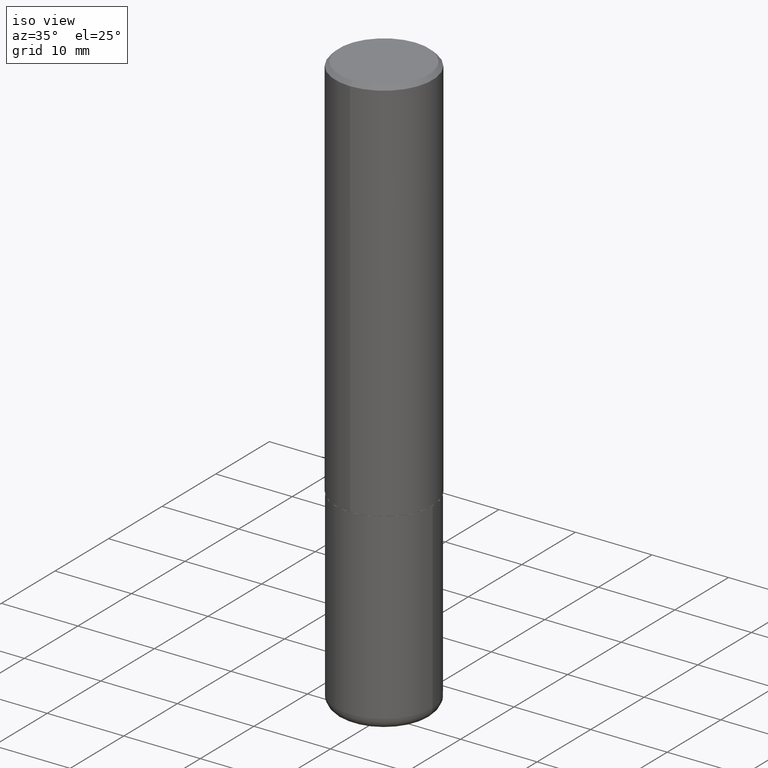
[diagram: clean part render]
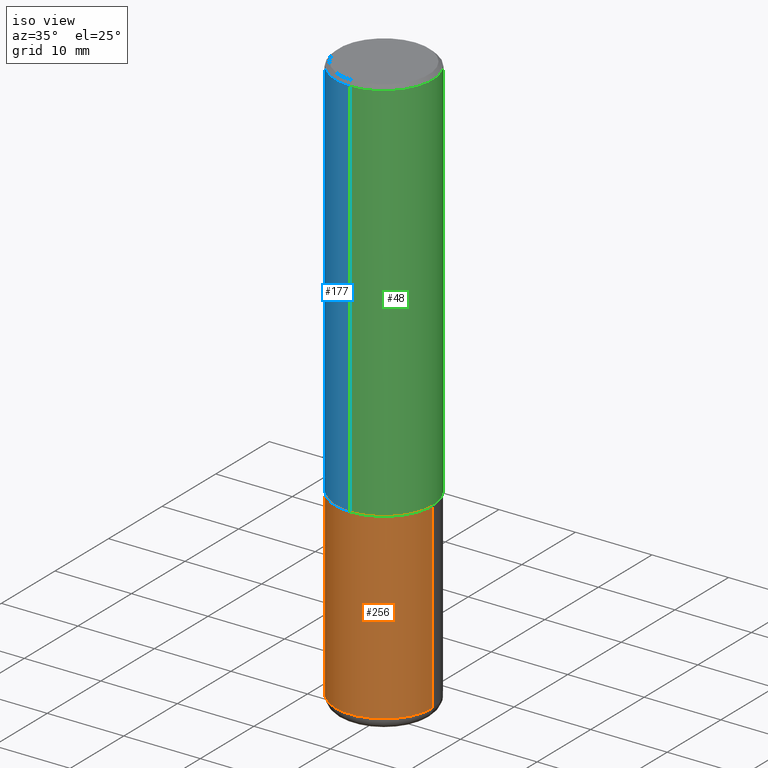
[diagram: same view with three faces highlighted in distinct colors, each labeled with its STEP entity id]
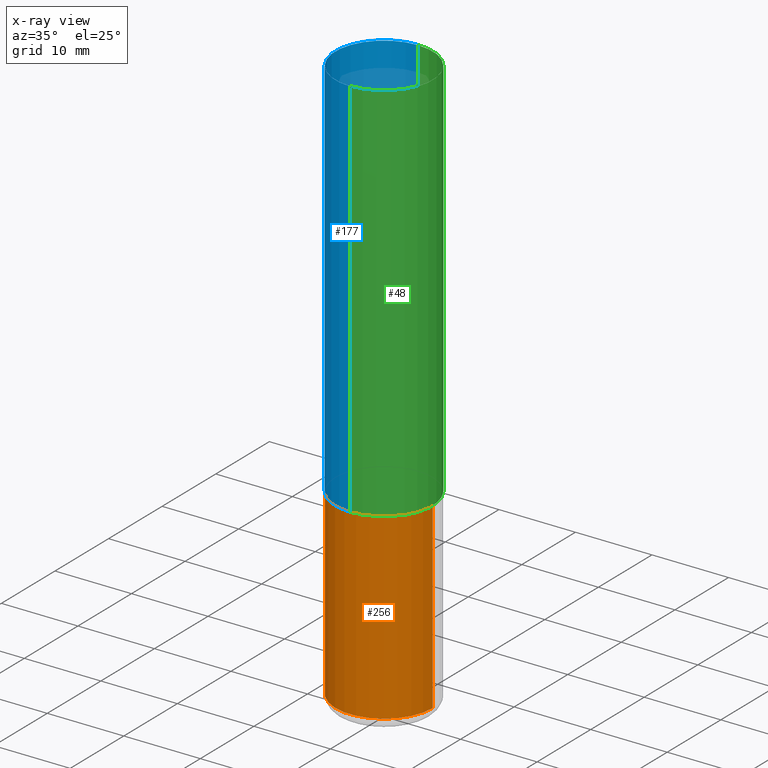
[diagram: x-ray of the same camera — body ghosted, the three highlighted faces saturated]
A machine part, iso view with three faces highlighted in distinct colors.
The next image is the same camera in x-ray (body ghosted, the three faces saturated) — at least one of them is partly hidden behind the body in this view.
Their STEP definitions:

[orange] entity #256 — the highlighted cylindrical surface (partial cylindrical patch) has radius 6.35 mm, axis along (-0, 0, 1).
#3 = ORIENTED_EDGE ( 'NONE', *, *, #411, .F. ) ;
#8 = CARTESIAN_POINT ( 'NONE',  ( 0.2500000000000000000, -1.745740669421566678E-15, 1.219044193948983948E-29 ) ) ;
#15 = CARTESIAN_POINT ( 'NONE',  ( 4.890937612370273754E-29, -6.982962677686291954E-15, -2.000000000000000444 ) ) ;
#28 = EDGE_LOOP ( 'NONE', ( #175, #350, #208, #3 ) ) ;
#31 = VERTEX_POINT ( 'NONE', #348 ) ;
#35 = DIRECTION ( 'NONE',  ( -2.445468806185136597E-29, 3.491481338843145583E-15, 1.000000000000000000 ) ) ;
#47 = DIRECTION ( 'NONE',  ( -2.445468806185136877E-29, 3.491481338843145188E-15, 1.000000000000000000 ) ) ;
#63 = DIRECTION ( 'NONE',  ( -2.445468806185136597E-29, 3.491481338843145583E-15, 1.000000000000000000 ) ) ;
#76 = DIRECTION ( 'NONE',  ( -2.445468806185136597E-29, 3.491481338843145583E-15, 1.000000000000000000 ) ) ;
#81 = VECTOR ( 'NONE', #303, 39.37007874015748143 ) ;
#85 = CIRCLE ( 'NONE', #295, 0.2500000000000000000 ) ;
#100 = DIRECTION ( 'NONE',  ( 1.000000000000000000, -6.982962677686266711E-15, 4.876176775795935793E-29 ) ) ;
#115 = EDGE_CURVE ( 'NONE', #331, #144, #85, .T. ) ;
#116 = DIRECTION ( 'NONE',  ( 1.000000000000000000, -6.982962677686262766E-15, 0.000000000000000000 ) ) ;
#131 = CYLINDRICAL_SURFACE ( 'NONE', #216, 0.2500000000000000000 ) ;
#138 = CARTESIAN_POINT ( 'NONE',  ( -0.2500000000000000000, -6.847602067542319531E-15, -2.000000000000000444 ) ) ;
#141 = CARTESIAN_POINT ( 'NONE',  ( -0.2499999999999998335, -8.488598296798600727E-15, -2.940000000000000391 ) ) ;
#144 = VERTEX_POINT ( 'NONE', #381 ) ;
#175 = ORIENTED_EDGE ( 'NONE', *, *, #338, .F. ) ;
#178 = CARTESIAN_POINT ( 'NONE',  ( -0.2500000000000000000, 1.776356839400250465E-15, -1.229733772563726445E-29 ) ) ;
#183 = VECTOR ( 'NONE', #47, 39.37007874015748143 ) ;
#201 = FACE_OUTER_BOUND ( 'NONE', #28, .T. ) ;
#208 = ORIENTED_EDGE ( 'NONE', *, *, #275, .T. ) ;
#216 = AXIS2_PLACEMENT_3D ( 'NONE', #332, #35, #100 ) ;
#256 = ADVANCED_FACE ( 'NONE', ( #201 ), #131, .T. ) ;
#270 = CIRCLE ( 'NONE', #277, 0.2500000000000000000 ) ;
#275 = EDGE_CURVE ( 'NONE', #144, #31, #304, .T. ) ;
#277 = AXIS2_PLACEMENT_3D ( 'NONE', #15, #76, #278 ) ;
#278 = DIRECTION ( 'NONE',  ( 1.000000000000000000, -6.982962677686266711E-15, 0.000000000000000000 ) ) ;
#295 = AXIS2_PLACEMENT_3D ( 'NONE', #391, #63, #116 ) ;
#303 = DIRECTION ( 'NONE',  ( -2.445468806185136877E-29, 3.491481338843145188E-15, 1.000000000000000000 ) ) ;
#304 = LINE ( 'NONE', #8, #81 ) ;
#331 = VERTEX_POINT ( 'NONE', #141 ) ;
#332 = CARTESIAN_POINT ( 'NONE',  ( 0.000000000000000000, 0.000000000000000000, 0.000000000000000000 ) ) ;
#333 = VERTEX_POINT ( 'NONE', #138 ) ;
#338 = EDGE_CURVE ( 'NONE', #331, #333, #412, .T. ) ;
#348 = CARTESIAN_POINT ( 'NONE',  ( 0.2500000000000000000, -8.728703347107858632E-15, -2.000000000000000444 ) ) ;
#350 = ORIENTED_EDGE ( 'NONE', *, *, #115, .T. ) ;
#381 = CARTESIAN_POINT ( 'NONE',  ( 0.2499999999999998335, -1.201069580562041471E-14, -2.940000000000000391 ) ) ;
#391 = CARTESIAN_POINT ( 'NONE',  ( 7.189678290184301639E-29, -1.026495513619884961E-14, -2.940000000000000391 ) ) ;
#411 = EDGE_CURVE ( 'NONE', #333, #31, #270, .T. ) ;
#412 = LINE ( 'NONE', #178, #183 ) ;

[blue] entity #177 — the highlighted cylindrical surface (partial cylindrical patch) has radius 6.35 mm, axis along (-0, 0, 1).
#2 = EDGE_CURVE ( 'NONE', #149, #206, #320, .T. ) ;
#6 = EDGE_LOOP ( 'NONE', ( #123, #146, #102, #276 ) ) ;
#34 = VERTEX_POINT ( 'NONE', #353 ) ;
#39 = DIRECTION ( 'NONE',  ( -6.982962677686265922E-15, -1.000000000000000000, 3.483106191921935554E-15 ) ) ;
#56 = DIRECTION ( 'NONE',  ( -2.446505465165992010E-29, 3.489996784179595405E-15, 1.000000000000000000 ) ) ;
#87 = CARTESIAN_POINT ( 'NONE',  ( 0.000000000000000000, 0.000000000000000000, 0.000000000000000000 ) ) ;
#90 = EDGE_CURVE ( 'NONE', #206, #160, #290, .T. ) ;
#102 = ORIENTED_EDGE ( 'NONE', *, *, #90, .T. ) ;
#118 = CYLINDRICAL_SURFACE ( 'NONE', #345, 0.2500000000000001110 ) ;
#123 = ORIENTED_EDGE ( 'NONE', *, *, #283, .F. ) ;
#129 = LINE ( 'NONE', #168, #179 ) ;
#146 = ORIENTED_EDGE ( 'NONE', *, *, #2, .T. ) ;
#147 = CIRCLE ( 'NONE', #362, 0.2500000000000000000 ) ;
#149 = VERTEX_POINT ( 'NONE', #415 ) ;
#159 = CARTESIAN_POINT ( 'NONE',  ( -1.745740669421519346E-15, -0.2500000000000072164, -1.998999999999999444 ) ) ;
#160 = VERTEX_POINT ( 'NONE', #326 ) ;
#168 = CARTESIAN_POINT ( 'NONE',  ( 1.776356839400251254E-15, 0.2500000000000001110, -8.724991960448993443E-16 ) ) ;
#177 = ADVANCED_FACE ( 'NONE', ( #351 ), #118, .T. ) ;
#179 = VECTOR ( 'NONE', #306, 39.37007874015748143 ) ;
#200 = VECTOR ( 'NONE', #263, 39.37007874015748143 ) ;
#206 = VERTEX_POINT ( 'NONE', #159 ) ;
#224 = DIRECTION ( 'NONE',  ( -6.982962677686266711E-15, -1.000000000000000000, 3.489996784179595799E-15 ) ) ;
#263 = DIRECTION ( 'NONE',  ( -2.446505465165992010E-29, 3.489996784179595405E-15, 1.000000000000000000 ) ) ;
#271 = EDGE_CURVE ( 'NONE', #34, #160, #147, .T. ) ;
#274 = DIRECTION ( 'NONE',  ( -2.446505465165992010E-29, 3.489996784179595405E-15, 1.000000000000000000 ) ) ;
#276 = ORIENTED_EDGE ( 'NONE', *, *, #271, .F. ) ;
#283 = EDGE_CURVE ( 'NONE', #149, #34, #129, .T. ) ;
#290 = LINE ( 'NONE', #414, #200 ) ;
#306 = DIRECTION ( 'NONE',  ( -2.446505465165992010E-29, 3.489996784179595405E-15, 1.000000000000000000 ) ) ;
#320 = CIRCLE ( 'NONE', #372, 0.2500000000000002776 ) ;
#322 = CARTESIAN_POINT ( 'NONE',  ( 4.890564424866818786E-29, -6.976503571575011888E-15, -1.999000000000000110 ) ) ;
#326 = CARTESIAN_POINT ( 'NONE',  ( -1.715124499442882299E-15, -0.2500000000000000555, -0.01999999999999918510 ) ) ;
#330 = DIRECTION ( 'NONE',  ( -6.982962677686265922E-15, -1.000000000000000000, 3.278217592397112312E-15 ) ) ;
#345 = AXIS2_PLACEMENT_3D ( 'NONE', #87, #56, #224 ) ;
#351 = FACE_OUTER_BOUND ( 'NONE', #6, .T. ) ;
#353 = CARTESIAN_POINT ( 'NONE',  ( 1.745740669421566875E-15, 0.2499999999999999167, -0.02000000000000092676 ) ) ;
#362 = AXIS2_PLACEMENT_3D ( 'NONE', #397, #274, #39 ) ;
#372 = AXIS2_PLACEMENT_3D ( 'NONE', #322, #388, #330 ) ;
#388 = DIRECTION ( 'NONE',  ( -2.446505465165992010E-29, 3.489996784179595405E-15, 1.000000000000000000 ) ) ;
#397 = CARTESIAN_POINT ( 'NONE',  ( 4.893010930331997927E-31, -6.979993568359209594E-17, -0.02000000000000005593 ) ) ;
#414 = CARTESIAN_POINT ( 'NONE',  ( -1.745740669421567467E-15, -0.2500000000000001110, 8.724991960448993443E-16 ) ) ;
#415 = CARTESIAN_POINT ( 'NONE',  ( 1.776356839400276497E-15, 0.2499999999999933109, -1.999000000000000998 ) ) ;

[green] entity #48 — the highlighted cylindrical surface (partial cylindrical patch) has radius 6.35 mm, axis along (-0, 0, 1).
#34 = VERTEX_POINT ( 'NONE', #353 ) ;
#48 = ADVANCED_FACE ( 'NONE', ( #416 ), #258, .T. ) ;
#69 = EDGE_CURVE ( 'NONE', #206, #149, #308, .T. ) ;
#77 = ORIENTED_EDGE ( 'NONE', *, *, #221, .F. ) ;
#90 = EDGE_CURVE ( 'NONE', #206, #160, #290, .T. ) ;
#95 = ORIENTED_EDGE ( 'NONE', *, *, #283, .T. ) ;
#106 = AXIS2_PLACEMENT_3D ( 'NONE', #384, #418, #122 ) ;
#113 = CIRCLE ( 'NONE', #151, 0.2500000000000000000 ) ;
#122 = DIRECTION ( 'NONE',  ( -6.982962677686266711E-15, -1.000000000000000000, 3.489996784179595799E-15 ) ) ;
#129 = LINE ( 'NONE', #168, #179 ) ;
#142 = ORIENTED_EDGE ( 'NONE', *, *, #69, .T. ) ;
#149 = VERTEX_POINT ( 'NONE', #415 ) ;
#151 = AXIS2_PLACEMENT_3D ( 'NONE', #364, #366, #170 ) ;
#153 = DIRECTION ( 'NONE',  ( -2.446505465165992010E-29, 3.489996784179595405E-15, 1.000000000000000000 ) ) ;
#159 = CARTESIAN_POINT ( 'NONE',  ( -1.745740669421519346E-15, -0.2500000000000072164, -1.998999999999999444 ) ) ;
#160 = VERTEX_POINT ( 'NONE', #326 ) ;
#164 = AXIS2_PLACEMENT_3D ( 'NONE', #228, #153, #324 ) ;
#168 = CARTESIAN_POINT ( 'NONE',  ( 1.776356839400251254E-15, 0.2500000000000001110, -8.724991960448993443E-16 ) ) ;
#170 = DIRECTION ( 'NONE',  ( -6.982962677686265922E-15, -1.000000000000000000, 3.483106191921935554E-15 ) ) ;
#179 = VECTOR ( 'NONE', #306, 39.37007874015748143 ) ;
#200 = VECTOR ( 'NONE', #263, 39.37007874015748143 ) ;
#206 = VERTEX_POINT ( 'NONE', #159 ) ;
#214 = ORIENTED_EDGE ( 'NONE', *, *, #90, .F. ) ;
#221 = EDGE_CURVE ( 'NONE', #160, #34, #113, .T. ) ;
#228 = CARTESIAN_POINT ( 'NONE',  ( 4.890564424866818786E-29, -6.976503571575011888E-15, -1.999000000000000110 ) ) ;
#258 = CYLINDRICAL_SURFACE ( 'NONE', #106, 0.2500000000000001110 ) ;
#263 = DIRECTION ( 'NONE',  ( -2.446505465165992010E-29, 3.489996784179595405E-15, 1.000000000000000000 ) ) ;
#283 = EDGE_CURVE ( 'NONE', #149, #34, #129, .T. ) ;
#290 = LINE ( 'NONE', #414, #200 ) ;
#306 = DIRECTION ( 'NONE',  ( -2.446505465165992010E-29, 3.489996784179595405E-15, 1.000000000000000000 ) ) ;
#308 = CIRCLE ( 'NONE', #164, 0.2500000000000002776 ) ;
#324 = DIRECTION ( 'NONE',  ( -6.982962677686265922E-15, -1.000000000000000000, 3.278217592397112312E-15 ) ) ;
#326 = CARTESIAN_POINT ( 'NONE',  ( -1.715124499442882299E-15, -0.2500000000000000555, -0.01999999999999918510 ) ) ;
#343 = EDGE_LOOP ( 'NONE', ( #142, #95, #77, #214 ) ) ;
#353 = CARTESIAN_POINT ( 'NONE',  ( 1.745740669421566875E-15, 0.2499999999999999167, -0.02000000000000092676 ) ) ;
#364 = CARTESIAN_POINT ( 'NONE',  ( 4.893010930331997927E-31, -6.979993568359209594E-17, -0.02000000000000005593 ) ) ;
#366 = DIRECTION ( 'NONE',  ( -2.446505465165992010E-29, 3.489996784179595405E-15, 1.000000000000000000 ) ) ;
#384 = CARTESIAN_POINT ( 'NONE',  ( 0.000000000000000000, 0.000000000000000000, 0.000000000000000000 ) ) ;
#414 = CARTESIAN_POINT ( 'NONE',  ( -1.745740669421567467E-15, -0.2500000000000001110, 8.724991960448993443E-16 ) ) ;
#415 = CARTESIAN_POINT ( 'NONE',  ( 1.776356839400276497E-15, 0.2499999999999933109, -1.999000000000000998 ) ) ;
#416 = FACE_OUTER_BOUND ( 'NONE', #343, .T. ) ;
#418 = DIRECTION ( 'NONE',  ( -2.446505465165992010E-29, 3.489996784179595405E-15, 1.000000000000000000 ) ) ;